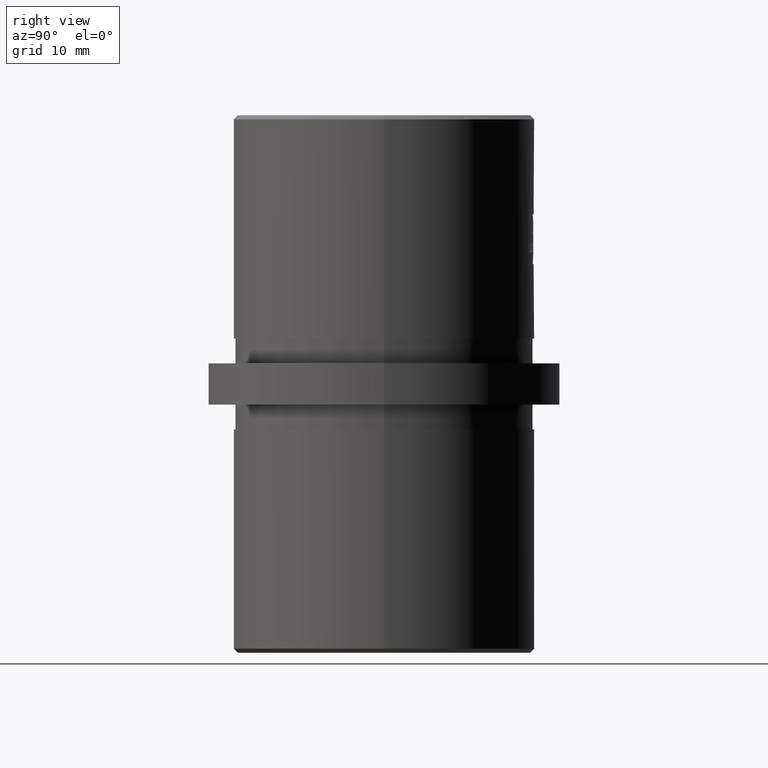
[diagram: clean part render]
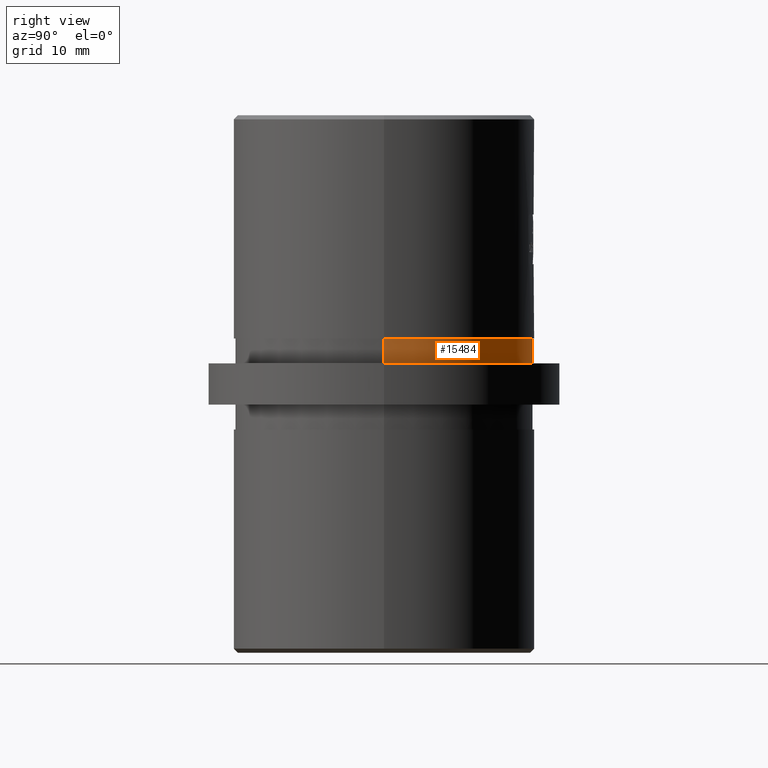
[diagram: same view with one face highlighted and labeled with its STEP entity id]
A machine part, right view. The second image highlights one B-rep face of the part: STEP entity #15484.
In plain terms, the highlighted cylindrical surface (partial cylindrical patch) has radius 17.95 mm, axis along (-0, -0, -1).
Its self-contained STEP definition (entity closure, byte-faithful):
#725 = CIRCLE ( 'NONE', #13163, 17.95000000000000300 ) ;
#1289 = VECTOR ( 'NONE', #13323, 1000.000000000000000 ) ;
#2833 = CARTESIAN_POINT ( 'NONE',  ( 17.95000000000000300, 2.198241004469499500E-015, 2.500000000000000000 ) ) ;
#3233 = ORIENTED_EDGE ( 'NONE', *, *, #8882, .F. ) ;
#3504 = CARTESIAN_POINT ( 'NONE',  ( 17.95000000000000300, 2.198241004469499500E-015, 5.500000000000000000 ) ) ;
#4162 = DIRECTION ( 'NONE',  ( 1.000000000000000000, 0.0000000000000000000, 0.0000000000000000000 ) ) ;
#5097 = CARTESIAN_POINT ( 'NONE',  ( -17.95000000000000300, 0.0000000000000000000, 5.500000000000000000 ) ) ;
#5745 = ORIENTED_EDGE ( 'NONE', *, *, #12056, .T. ) ;
#5899 = DIRECTION ( 'NONE',  ( 0.0000000000000000000, 0.0000000000000000000, 1.000000000000000000 ) ) ;
#6114 = CARTESIAN_POINT ( 'NONE',  ( 0.0000000000000000000, 0.0000000000000000000, 5.500000000000000000 ) ) ;
#7109 = CARTESIAN_POINT ( 'NONE',  ( 0.0000000000000000000, 0.0000000000000000000, 2.500000000000000000 ) ) ;
#7398 = AXIS2_PLACEMENT_3D ( 'NONE', #14868, #14789, #19921 ) ;
#7697 = CARTESIAN_POINT ( 'NONE',  ( -17.95000000000000300, 0.0000000000000000000, 2.500000000000000000 ) ) ;
#8100 = ORIENTED_EDGE ( 'NONE', *, *, #9308, .T. ) ;
#8882 = EDGE_CURVE ( 'NONE', #11406, #20550, #16252, .T. ) ;
#9308 = EDGE_CURVE ( 'NONE', #16486, #13369, #725, .T. ) ;
#9609 = LINE ( 'NONE', #10752, #10142 ) ;
#10142 = VECTOR ( 'NONE', #10693, 1000.000000000000000 ) ;
#10250 = DIRECTION ( 'NONE',  ( 1.000000000000000000, 0.0000000000000000000, 0.0000000000000000000 ) ) ;
#10693 = DIRECTION ( 'NONE',  ( -0.0000000000000000000, -0.0000000000000000000, -1.000000000000000000 ) ) ;
#10752 = CARTESIAN_POINT ( 'NONE',  ( 17.95000000000000300, 2.198241004469499500E-015, 5.500000000000000000 ) ) ;
#10966 = LINE ( 'NONE', #5097, #1289 ) ;
#11406 = VERTEX_POINT ( 'NONE', #3504 ) ;
#12056 = EDGE_CURVE ( 'NONE', #11406, #16486, #9609, .T. ) ;
#13163 = AXIS2_PLACEMENT_3D ( 'NONE', #7109, #17191, #10250 ) ;
#13323 = DIRECTION ( 'NONE',  ( -0.0000000000000000000, -0.0000000000000000000, -1.000000000000000000 ) ) ;
#13369 = VERTEX_POINT ( 'NONE', #7697 ) ;
#14488 = CARTESIAN_POINT ( 'NONE',  ( -17.95000000000000300, 0.0000000000000000000, 5.500000000000000000 ) ) ;
#14789 = DIRECTION ( 'NONE',  ( -0.0000000000000000000, -0.0000000000000000000, -1.000000000000000000 ) ) ;
#14868 = CARTESIAN_POINT ( 'NONE',  ( 0.0000000000000000000, 0.0000000000000000000, 5.500000000000000000 ) ) ;
#15484 = ADVANCED_FACE ( 'NONE', ( #20187 ), #15750, .T. ) ;
#15573 = EDGE_CURVE ( 'NONE', #20550, #13369, #10966, .T. ) ;
#15750 = CYLINDRICAL_SURFACE ( 'NONE', #7398, 17.95000000000000300 ) ;
#15823 = EDGE_LOOP ( 'NONE', ( #3233, #5745, #8100, #19990 ) ) ;
#16252 = CIRCLE ( 'NONE', #20058, 17.95000000000000300 ) ;
#16486 = VERTEX_POINT ( 'NONE', #2833 ) ;
#17191 = DIRECTION ( 'NONE',  ( 0.0000000000000000000, 0.0000000000000000000, 1.000000000000000000 ) ) ;
#19921 = DIRECTION ( 'NONE',  ( -1.000000000000000000, 0.0000000000000000000, 0.0000000000000000000 ) ) ;
#19990 = ORIENTED_EDGE ( 'NONE', *, *, #15573, .F. ) ;
#20058 = AXIS2_PLACEMENT_3D ( 'NONE', #6114, #5899, #4162 ) ;
#20187 = FACE_OUTER_BOUND ( 'NONE', #15823, .T. ) ;
#20550 = VERTEX_POINT ( 'NONE', #14488 ) ;